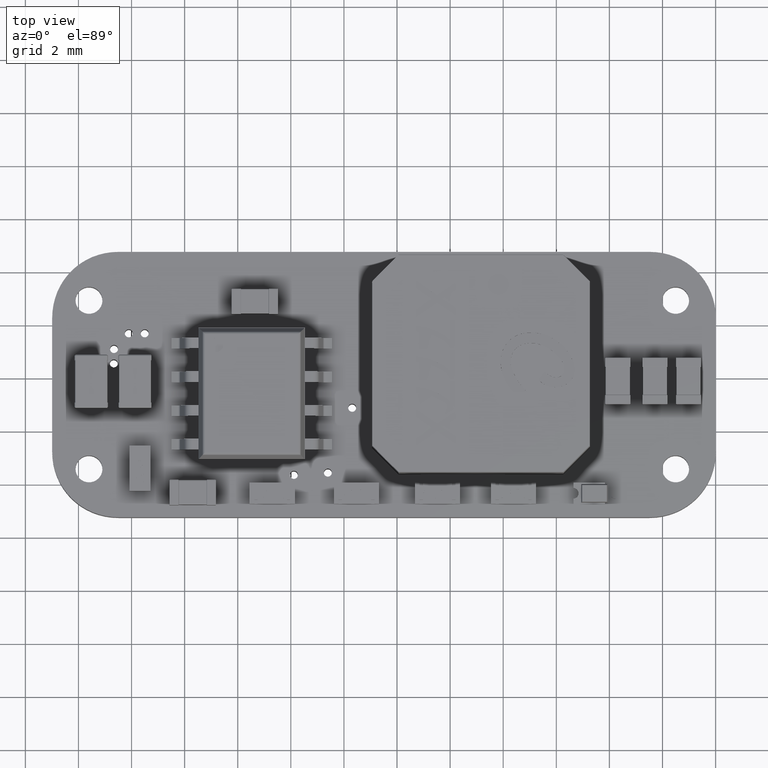
[diagram: clean part render]
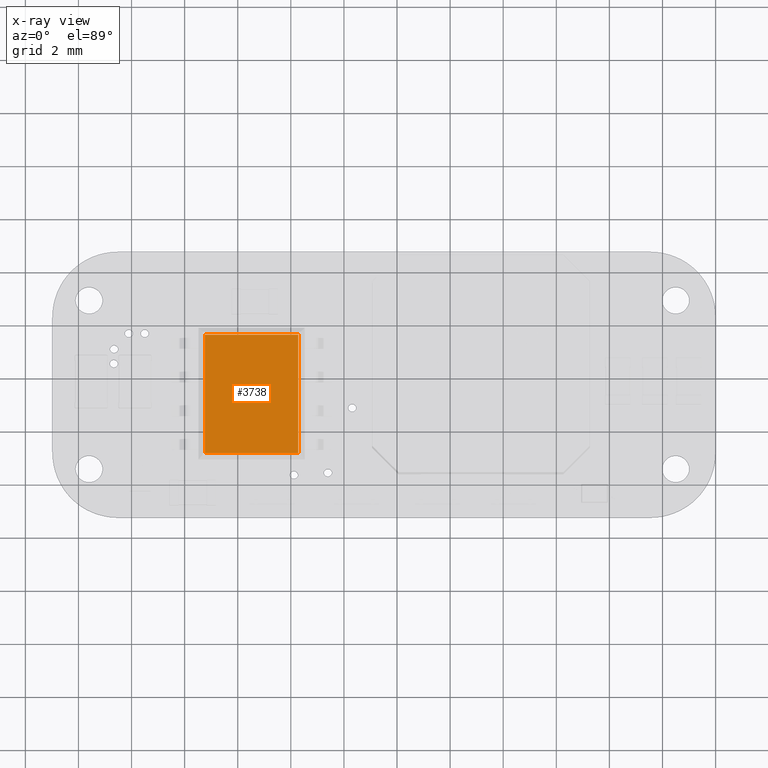
[diagram: x-ray — body ghosted, one internal face saturated and labeled with its STEP entity id]
A machine part, top view, then the same camera in x-ray: the body is ghosted and one INTERNAL B-rep face — a face not visible from any outside direction — is saturated and labeled: STEP entity #3738.
In plain terms, the highlighted planar face has unit normal (0, 0, -1).
Its self-contained STEP definition (entity closure, byte-faithful):
#3738 = ADVANCED_FACE('',(#3739),#3773,.T.);
#3739 = FACE_BOUND('',#3740,.T.);
#3740 = EDGE_LOOP('',(#3741,#3751,#3759,#3767));
#3741 = ORIENTED_EDGE('',*,*,#3742,.T.);
#3742 = EDGE_CURVE('',#3743,#3745,#3747,.T.);
#3743 = VERTEX_POINT('',#3744);
#3744 = CARTESIAN_POINT('',(-1.756415827003,0.15,2.231415827003));
#3745 = VERTEX_POINT('',#3746);
#3746 = CARTESIAN_POINT('',(-1.756415827003,0.15,-2.231415827003));
#3747 = LINE('',#3748,#3749);
#3748 = CARTESIAN_POINT('',(-1.756415827003,0.15,-2.475));
#3749 = VECTOR('',#3750,1.);
#3750 = DIRECTION('',(-2.628368902995E-16,0.,-1.));
#3751 = ORIENTED_EDGE('',*,*,#3752,.T.);
#3752 = EDGE_CURVE('',#3745,#3753,#3755,.T.);
#3753 = VERTEX_POINT('',#3754);
#3754 = CARTESIAN_POINT('',(1.756415827003,0.15,-2.231415827003));
#3755 = LINE('',#3756,#3757);
#3756 = CARTESIAN_POINT('',(-2.,0.15,-2.231415827003));
#3757 = VECTOR('',#3758,1.);
#3758 = DIRECTION('',(1.,0.,-1.084202172486E-16));
#3759 = ORIENTED_EDGE('',*,*,#3760,.T.);
#3760 = EDGE_CURVE('',#3753,#3761,#3763,.T.);
#3761 = VERTEX_POINT('',#3762);
#3762 = CARTESIAN_POINT('',(1.756415827003,0.15,2.231415827003));
#3763 = LINE('',#3764,#3765);
#3764 = CARTESIAN_POINT('',(1.756415827003,0.15,-2.475));
#3765 = VECTOR('',#3766,1.);
#3766 = DIRECTION('',(8.761229676651E-17,0.,1.));
#3767 = ORIENTED_EDGE('',*,*,#3768,.T.);
#3768 = EDGE_CURVE('',#3761,#3743,#3769,.T.);
#3769 = LINE('',#3770,#3771);
#3770 = CARTESIAN_POINT('',(-2.,0.15,2.231415827003));
#3771 = VECTOR('',#3772,1.);
#3772 = DIRECTION('',(-1.,0.,1.084202172486E-16));
#3773 = PLANE('',#3774);
#3774 = AXIS2_PLACEMENT_3D('',#3775,#3776,#3777);
#3775 = CARTESIAN_POINT('',(-2.,0.15,-2.475));
#3776 = DIRECTION('',(0.,-1.,0.));
#3777 = DIRECTION('',(0.,0.,-1.));